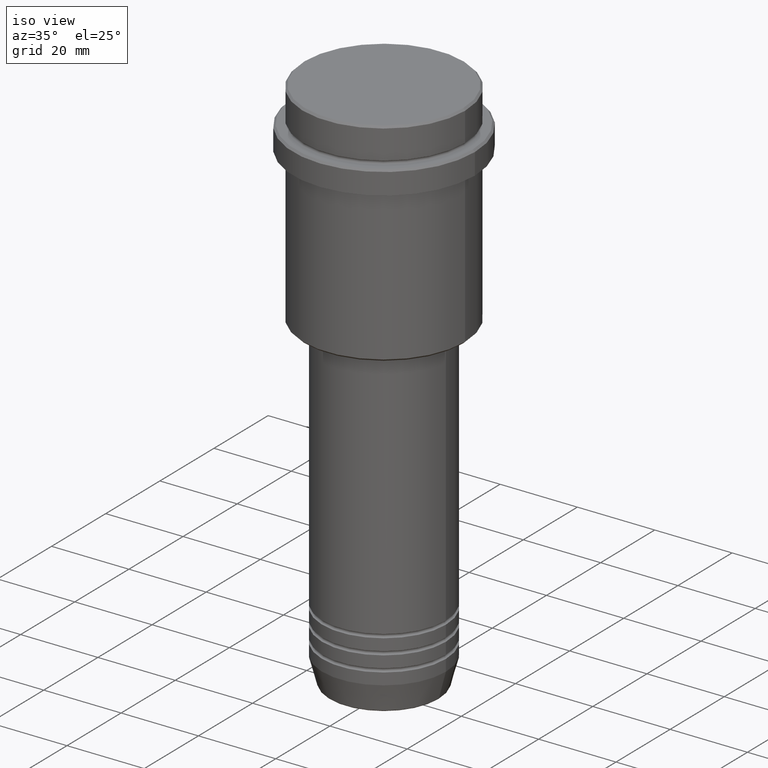
[diagram: clean part render]
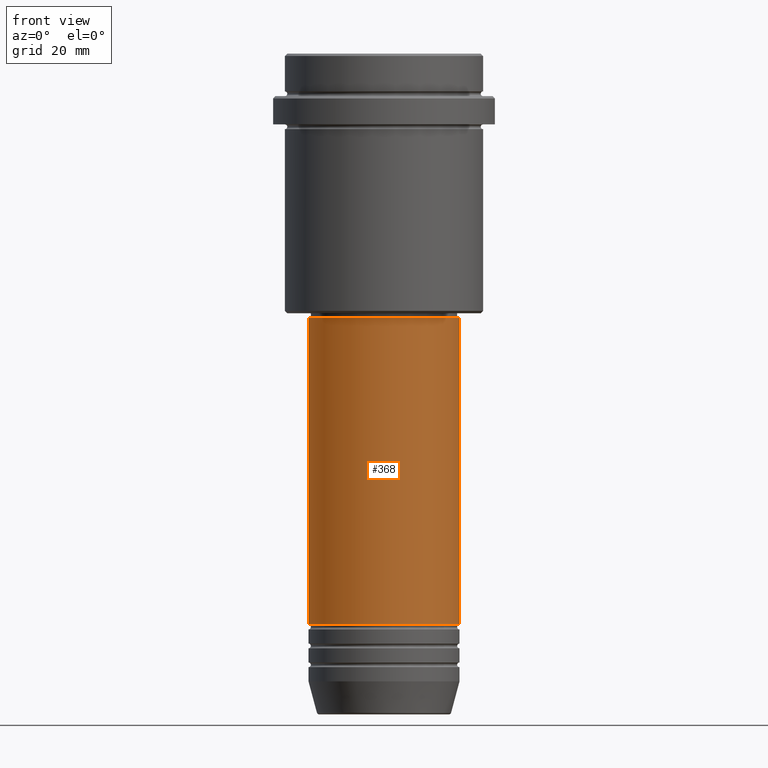
[diagram: tour spotlight — one face highlighted and labeled with its STEP entity id]
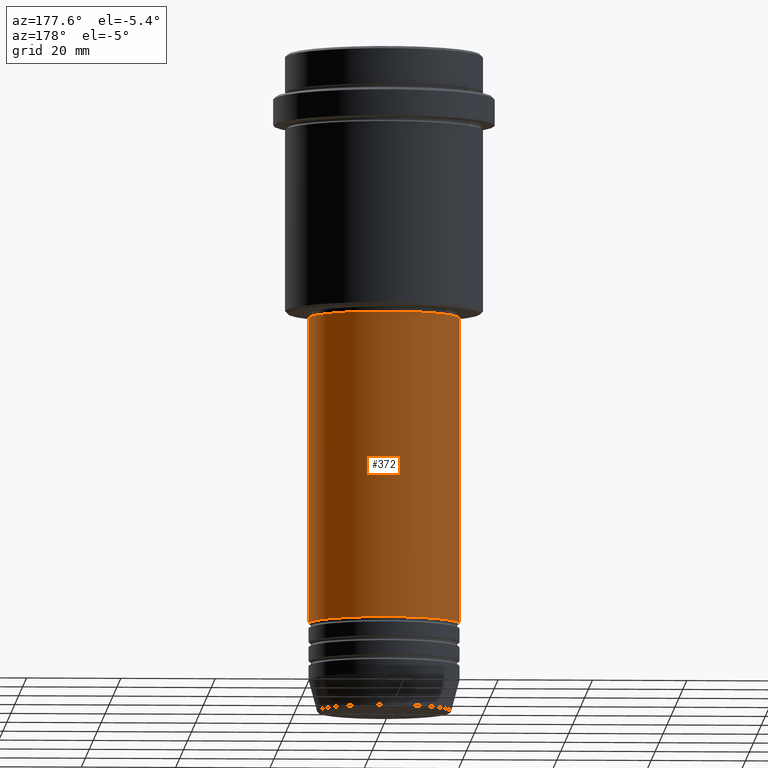
[diagram: tour spotlight — one face highlighted and labeled with its STEP entity id]
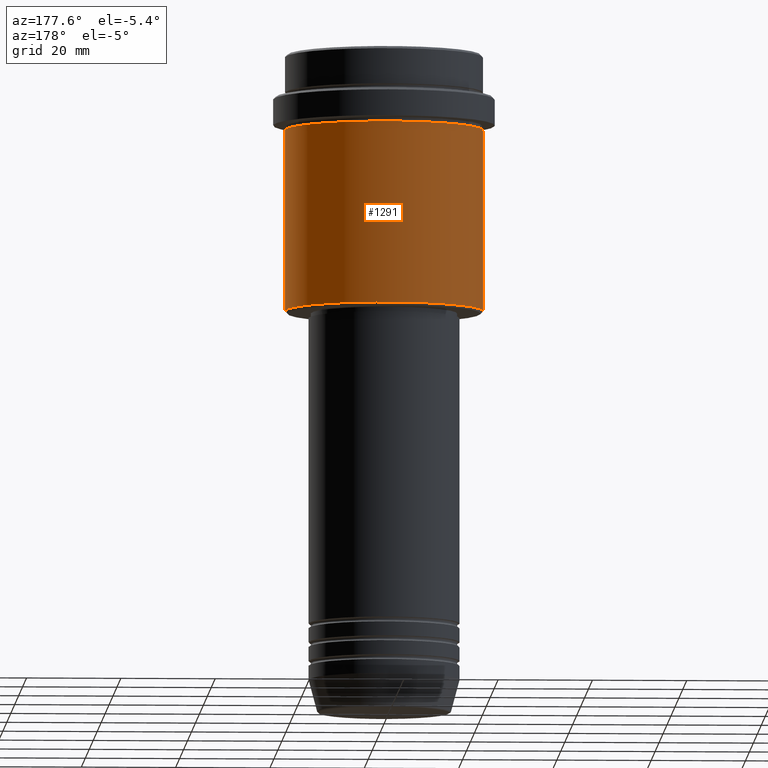
[diagram: tour spotlight — one face highlighted and labeled with its STEP entity id]
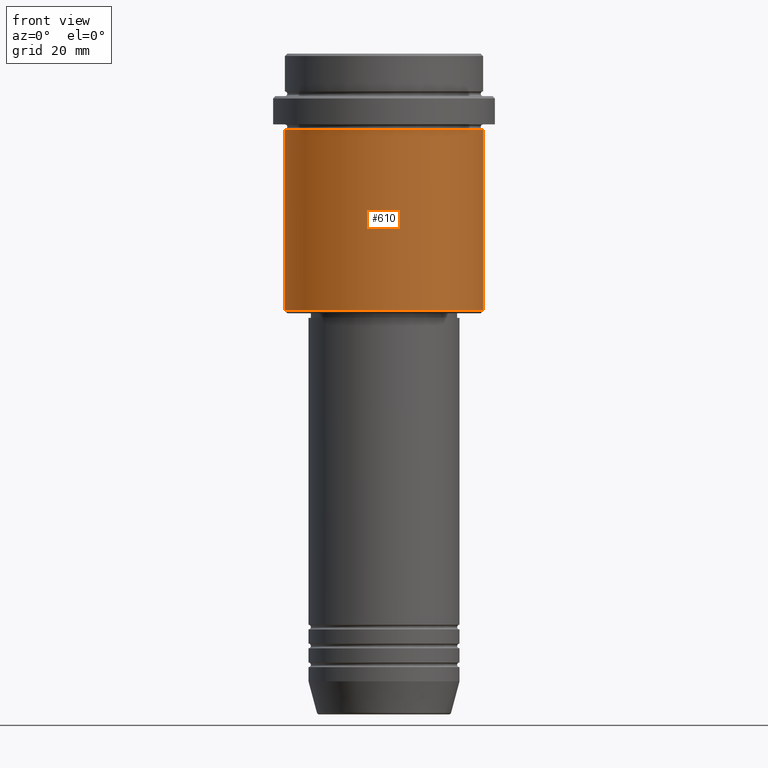
[diagram: tour spotlight — one face highlighted and labeled with its STEP entity id]
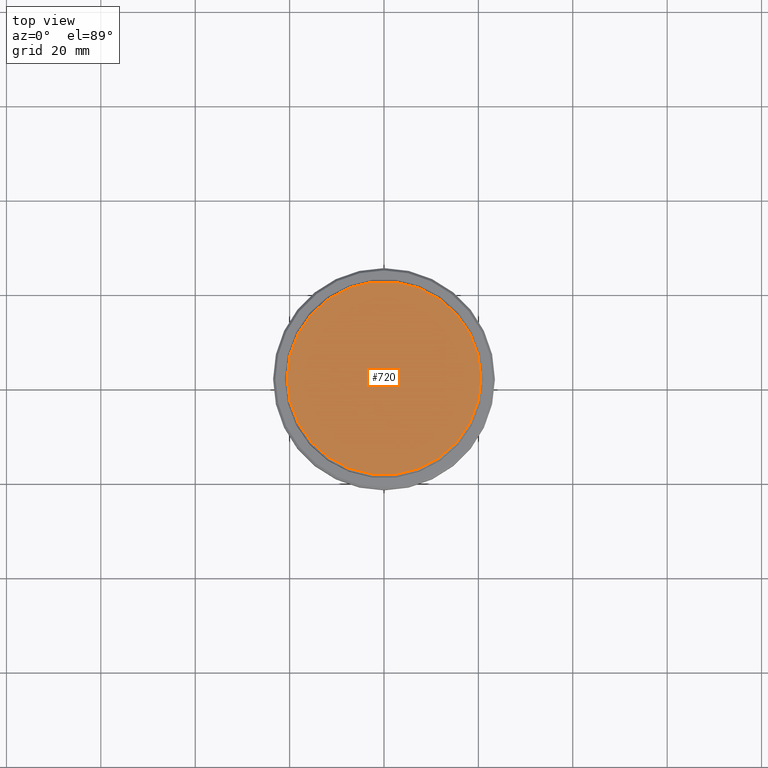
[diagram: tour spotlight — one face highlighted and labeled with its STEP entity id]
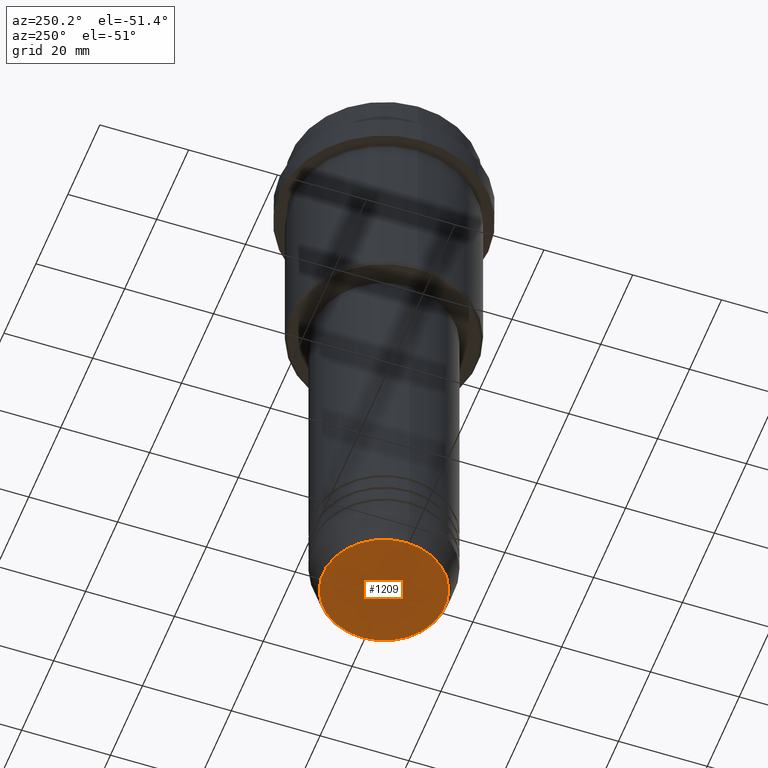
[diagram: tour spotlight — one face highlighted and labeled with its STEP entity id]
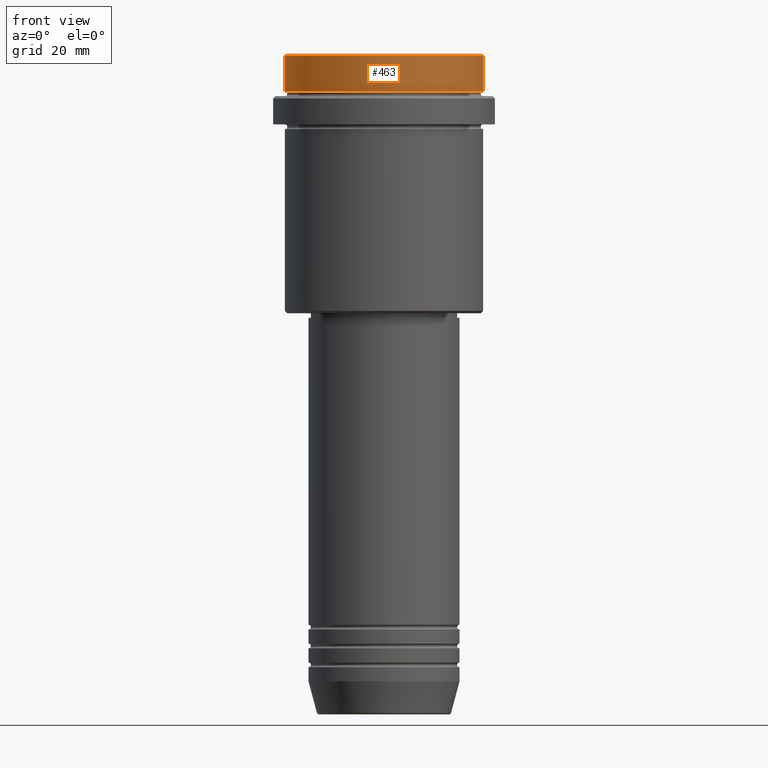
[diagram: tour spotlight — one face highlighted and labeled with its STEP entity id]
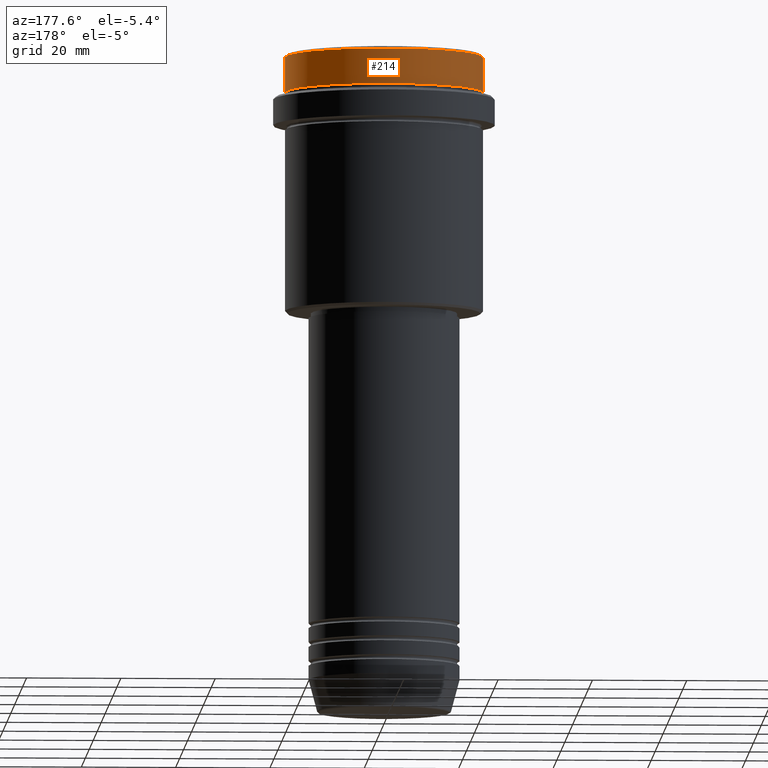
[diagram: tour spotlight — one face highlighted and labeled with its STEP entity id]
A machine part: a face-by-face anatomy tour. The part has 52 B-rep faces; the first image is the clean iso view, then the 8 largest visible faces are spotlighted one at a time (largest first), each with its STEP entity span.

Face 1 — front view, entity #368. In plain terms, the highlighted cylindrical surface (partial cylindrical patch) has radius 16 mm, axis along (-0, -0, 1).
Definition (entity closure, byte-faithful):
#7 = CIRCLE ( 'NONE', #673, 16.00000000000000000 ) ;
#19 = ORIENTED_EDGE ( 'NONE', *, *, #54, .T. ) ;
#47 = FACE_OUTER_BOUND ( 'NONE', #68, .T. ) ;
#54 = EDGE_CURVE ( 'NONE', #112, #759, #1407, .T. ) ;
#68 = EDGE_LOOP ( 'NONE', ( #1361, #914, #19, #954 ) ) ;
#82 = DIRECTION ( 'NONE',  ( 1.000000000000000000, 0.000000000000000000, 0.000000000000000000 ) ) ;
#94 = CIRCLE ( 'NONE', #293, 16.00000000000000355 ) ;
#112 = VERTEX_POINT ( 'NONE', #521 ) ;
#293 = AXIS2_PLACEMENT_3D ( 'NONE', #776, #452, #1183 ) ;
#368 = ADVANCED_FACE ( 'NONE', ( #47 ), #465, .T. ) ;
#409 = CARTESIAN_POINT ( 'NONE',  ( -16.00000000000000000, 1.959434878635765131E-15, -120.9999999999999005 ) ) ;
#452 = DIRECTION ( 'NONE',  ( -0.000000000000000000, -0.000000000000000000, 1.000000000000000000 ) ) ;
#465 = CYLINDRICAL_SURFACE ( 'NONE', #1373, 16.00000000000000000 ) ;
#479 = DIRECTION ( 'NONE',  ( -0.000000000000000000, -0.000000000000000000, 1.000000000000000000 ) ) ;
#497 = VECTOR ( 'NONE', #604, 1000.000000000000000 ) ;
#521 = CARTESIAN_POINT ( 'NONE',  ( 16.00000000000000000, 0.000000000000000000, -120.9999999999999005 ) ) ;
#604 = DIRECTION ( 'NONE',  ( -0.000000000000000000, -0.000000000000000000, 1.000000000000000000 ) ) ;
#673 = AXIS2_PLACEMENT_3D ( 'NONE', #701, #1231, #82 ) ;
#701 = CARTESIAN_POINT ( 'NONE',  ( 0.000000000000000000, 0.000000000000000000, -120.9999999999999005 ) ) ;
#718 = CARTESIAN_POINT ( 'NONE',  ( -16.00000000000000000, 1.959434878635765131E-15, 0.000000000000000000 ) ) ;
#744 = EDGE_CURVE ( 'NONE', #861, #818, #1126, .T. ) ;
#759 = VERTEX_POINT ( 'NONE', #1035 ) ;
#776 = CARTESIAN_POINT ( 'NONE',  ( 0.000000000000000000, 0.000000000000000000, -56.00000000000000711 ) ) ;
#816 = CARTESIAN_POINT ( 'NONE',  ( -16.00000000000000355, 1.959434878635765526E-15, -56.00000000000000711 ) ) ;
#818 = VERTEX_POINT ( 'NONE', #816 ) ;
#821 = EDGE_CURVE ( 'NONE', #861, #112, #7, .T. ) ;
#861 = VERTEX_POINT ( 'NONE', #409 ) ;
#914 = ORIENTED_EDGE ( 'NONE', *, *, #821, .T. ) ;
#916 = CARTESIAN_POINT ( 'NONE',  ( 0.000000000000000000, 0.000000000000000000, 0.000000000000000000 ) ) ;
#954 = ORIENTED_EDGE ( 'NONE', *, *, #1029, .F. ) ;
#1026 = DIRECTION ( 'NONE',  ( 1.000000000000000000, 0.000000000000000000, 0.000000000000000000 ) ) ;
#1029 = EDGE_CURVE ( 'NONE', #818, #759, #94, .T. ) ;
#1035 = CARTESIAN_POINT ( 'NONE',  ( 16.00000000000000355, 0.000000000000000000, -56.00000000000000711 ) ) ;
#1120 = VECTOR ( 'NONE', #1284, 1000.000000000000000 ) ;
#1126 = LINE ( 'NONE', #718, #497 ) ;
#1183 = DIRECTION ( 'NONE',  ( 1.000000000000000000, 0.000000000000000000, 0.000000000000000000 ) ) ;
#1184 = CARTESIAN_POINT ( 'NONE',  ( 16.00000000000000000, 0.000000000000000000, 0.000000000000000000 ) ) ;
#1231 = DIRECTION ( 'NONE',  ( -0.000000000000000000, -0.000000000000000000, 1.000000000000000000 ) ) ;
#1284 = DIRECTION ( 'NONE',  ( -0.000000000000000000, -0.000000000000000000, 1.000000000000000000 ) ) ;
#1361 = ORIENTED_EDGE ( 'NONE', *, *, #744, .F. ) ;
#1373 = AXIS2_PLACEMENT_3D ( 'NONE', #916, #479, #1026 ) ;
#1407 = LINE ( 'NONE', #1184, #1120 ) ;

Face 2 — auxiliary view, entity #372. In plain terms, the highlighted cylindrical surface (partial cylindrical patch) has radius 16 mm, axis along (-0, -0, 1).
Definition (entity closure, byte-faithful):
#24 = CARTESIAN_POINT ( 'NONE',  ( 0.000000000000000000, 0.000000000000000000, 0.000000000000000000 ) ) ;
#54 = EDGE_CURVE ( 'NONE', #112, #759, #1407, .T. ) ;
#60 = DIRECTION ( 'NONE',  ( -0.000000000000000000, -0.000000000000000000, 1.000000000000000000 ) ) ;
#112 = VERTEX_POINT ( 'NONE', #521 ) ;
#204 = DIRECTION ( 'NONE',  ( -0.000000000000000000, -0.000000000000000000, 1.000000000000000000 ) ) ;
#235 = AXIS2_PLACEMENT_3D ( 'NONE', #24, #204, #948 ) ;
#243 = FACE_OUTER_BOUND ( 'NONE', #826, .T. ) ;
#353 = AXIS2_PLACEMENT_3D ( 'NONE', #1228, #60, #1353 ) ;
#372 = ADVANCED_FACE ( 'NONE', ( #243 ), #580, .T. ) ;
#409 = CARTESIAN_POINT ( 'NONE',  ( -16.00000000000000000, 1.959434878635765131E-15, -120.9999999999999005 ) ) ;
#497 = VECTOR ( 'NONE', #604, 1000.000000000000000 ) ;
#501 = ORIENTED_EDGE ( 'NONE', *, *, #629, .F. ) ;
#521 = CARTESIAN_POINT ( 'NONE',  ( 16.00000000000000000, 0.000000000000000000, -120.9999999999999005 ) ) ;
#580 = CYLINDRICAL_SURFACE ( 'NONE', #235, 16.00000000000000000 ) ;
#604 = DIRECTION ( 'NONE',  ( -0.000000000000000000, -0.000000000000000000, 1.000000000000000000 ) ) ;
#629 = EDGE_CURVE ( 'NONE', #759, #818, #851, .T. ) ;
#718 = CARTESIAN_POINT ( 'NONE',  ( -16.00000000000000000, 1.959434878635765131E-15, 0.000000000000000000 ) ) ;
#738 = ORIENTED_EDGE ( 'NONE', *, *, #54, .F. ) ;
#744 = EDGE_CURVE ( 'NONE', #861, #818, #1126, .T. ) ;
#759 = VERTEX_POINT ( 'NONE', #1035 ) ;
#790 = DIRECTION ( 'NONE',  ( -0.000000000000000000, -0.000000000000000000, 1.000000000000000000 ) ) ;
#816 = CARTESIAN_POINT ( 'NONE',  ( -16.00000000000000355, 1.959434878635765526E-15, -56.00000000000000711 ) ) ;
#818 = VERTEX_POINT ( 'NONE', #816 ) ;
#826 = EDGE_LOOP ( 'NONE', ( #1187, #937, #501, #738 ) ) ;
#851 = CIRCLE ( 'NONE', #1400, 16.00000000000000355 ) ;
#861 = VERTEX_POINT ( 'NONE', #409 ) ;
#937 = ORIENTED_EDGE ( 'NONE', *, *, #744, .T. ) ;
#948 = DIRECTION ( 'NONE',  ( 1.000000000000000000, 0.000000000000000000, 0.000000000000000000 ) ) ;
#1035 = CARTESIAN_POINT ( 'NONE',  ( 16.00000000000000355, 0.000000000000000000, -56.00000000000000711 ) ) ;
#1119 = EDGE_CURVE ( 'NONE', #112, #861, #1197, .T. ) ;
#1120 = VECTOR ( 'NONE', #1284, 1000.000000000000000 ) ;
#1126 = LINE ( 'NONE', #718, #497 ) ;
#1184 = CARTESIAN_POINT ( 'NONE',  ( 16.00000000000000000, 0.000000000000000000, 0.000000000000000000 ) ) ;
#1187 = ORIENTED_EDGE ( 'NONE', *, *, #1119, .T. ) ;
#1197 = CIRCLE ( 'NONE', #353, 16.00000000000000000 ) ;
#1228 = CARTESIAN_POINT ( 'NONE',  ( 0.000000000000000000, 0.000000000000000000, -120.9999999999999005 ) ) ;
#1284 = DIRECTION ( 'NONE',  ( -0.000000000000000000, -0.000000000000000000, 1.000000000000000000 ) ) ;
#1327 = DIRECTION ( 'NONE',  ( 1.000000000000000000, 0.000000000000000000, 0.000000000000000000 ) ) ;
#1353 = DIRECTION ( 'NONE',  ( 1.000000000000000000, 0.000000000000000000, 0.000000000000000000 ) ) ;
#1400 = AXIS2_PLACEMENT_3D ( 'NONE', #1413, #790, #1327 ) ;
#1407 = LINE ( 'NONE', #1184, #1120 ) ;
#1413 = CARTESIAN_POINT ( 'NONE',  ( 0.000000000000000000, 0.000000000000000000, -56.00000000000000711 ) ) ;

Face 3 — auxiliary view, entity #1291. In plain terms, the highlighted cylindrical surface (partial cylindrical patch) has radius 21 mm, axis along (-0, -0, 1).
Definition (entity closure, byte-faithful):
#36 = DIRECTION ( 'NONE',  ( -0.000000000000000000, -0.000000000000000000, 1.000000000000000000 ) ) ;
#65 = CARTESIAN_POINT ( 'NONE',  ( 0.000000000000000000, 0.000000000000000000, -54.49999999999999289 ) ) ;
#73 = AXIS2_PLACEMENT_3D ( 'NONE', #65, #950, #1208 ) ;
#75 = EDGE_CURVE ( 'NONE', #143, #228, #591, .T. ) ;
#100 = LINE ( 'NONE', #301, #287 ) ;
#143 = VERTEX_POINT ( 'NONE', #512 ) ;
#186 = DIRECTION ( 'NONE',  ( 1.000000000000000000, 0.000000000000000000, 0.000000000000000000 ) ) ;
#228 = VERTEX_POINT ( 'NONE', #808 ) ;
#287 = VECTOR ( 'NONE', #306, 1000.000000000000000 ) ;
#298 = ORIENTED_EDGE ( 'NONE', *, *, #75, .F. ) ;
#301 = CARTESIAN_POINT ( 'NONE',  ( -21.00000000000000000, 2.571758278209441661E-15, 0.000000000000000000 ) ) ;
#306 = DIRECTION ( 'NONE',  ( -0.000000000000000000, -0.000000000000000000, 1.000000000000000000 ) ) ;
#365 = EDGE_LOOP ( 'NONE', ( #1343, #449, #298, #802 ) ) ;
#406 = VERTEX_POINT ( 'NONE', #1129 ) ;
#418 = DIRECTION ( 'NONE',  ( -0.000000000000000000, -0.000000000000000000, 1.000000000000000000 ) ) ;
#425 = CARTESIAN_POINT ( 'NONE',  ( 0.000000000000000000, 0.000000000000000000, 0.000000000000000000 ) ) ;
#449 = ORIENTED_EDGE ( 'NONE', *, *, #488, .T. ) ;
#488 = EDGE_CURVE ( 'NONE', #1287, #228, #100, .T. ) ;
#512 = CARTESIAN_POINT ( 'NONE',  ( 21.00000000000000000, 0.000000000000000000, -16.00000000000000355 ) ) ;
#591 = CIRCLE ( 'NONE', #1330, 21.00000000000000000 ) ;
#612 = LINE ( 'NONE', #1041, #1053 ) ;
#734 = FACE_OUTER_BOUND ( 'NONE', #365, .T. ) ;
#777 = EDGE_CURVE ( 'NONE', #406, #143, #612, .T. ) ;
#802 = ORIENTED_EDGE ( 'NONE', *, *, #777, .F. ) ;
#808 = CARTESIAN_POINT ( 'NONE',  ( -21.00000000000000000, 2.571758278209441661E-15, -16.00000000000000355 ) ) ;
#950 = DIRECTION ( 'NONE',  ( -0.000000000000000000, -0.000000000000000000, 1.000000000000000000 ) ) ;
#963 = EDGE_CURVE ( 'NONE', #406, #1287, #1229, .T. ) ;
#1009 = AXIS2_PLACEMENT_3D ( 'NONE', #425, #418, #186 ) ;
#1041 = CARTESIAN_POINT ( 'NONE',  ( 21.00000000000000000, 0.000000000000000000, 0.000000000000000000 ) ) ;
#1053 = VECTOR ( 'NONE', #36, 1000.000000000000000 ) ;
#1129 = CARTESIAN_POINT ( 'NONE',  ( 21.00000000000000000, 0.000000000000000000, -54.49999999999999289 ) ) ;
#1161 = CARTESIAN_POINT ( 'NONE',  ( -21.00000000000000000, 2.571758278209441661E-15, -54.49999999999999289 ) ) ;
#1169 = CARTESIAN_POINT ( 'NONE',  ( 0.000000000000000000, 0.000000000000000000, -16.00000000000000355 ) ) ;
#1208 = DIRECTION ( 'NONE',  ( -1.000000000000000000, 0.000000000000000000, 0.000000000000000000 ) ) ;
#1229 = CIRCLE ( 'NONE', #73, 21.00000000000000000 ) ;
#1287 = VERTEX_POINT ( 'NONE', #1161 ) ;
#1290 = DIRECTION ( 'NONE',  ( 1.000000000000000000, 0.000000000000000000, 0.000000000000000000 ) ) ;
#1291 = ADVANCED_FACE ( 'NONE', ( #734 ), #1392, .T. ) ;
#1330 = AXIS2_PLACEMENT_3D ( 'NONE', #1169, #1412, #1290 ) ;
#1343 = ORIENTED_EDGE ( 'NONE', *, *, #963, .T. ) ;
#1392 = CYLINDRICAL_SURFACE ( 'NONE', #1009, 21.00000000000000000 ) ;
#1412 = DIRECTION ( 'NONE',  ( -0.000000000000000000, -0.000000000000000000, 1.000000000000000000 ) ) ;

Face 4 — front view, entity #610. In plain terms, the highlighted cylindrical surface (partial cylindrical patch) has radius 21 mm, axis along (-0, -0, 1).
Definition (entity closure, byte-faithful):
#36 = DIRECTION ( 'NONE',  ( -0.000000000000000000, -0.000000000000000000, 1.000000000000000000 ) ) ;
#37 = ORIENTED_EDGE ( 'NONE', *, *, #777, .T. ) ;
#100 = LINE ( 'NONE', #301, #287 ) ;
#122 = DIRECTION ( 'NONE',  ( -1.000000000000000000, 0.000000000000000000, 0.000000000000000000 ) ) ;
#143 = VERTEX_POINT ( 'NONE', #512 ) ;
#228 = VERTEX_POINT ( 'NONE', #808 ) ;
#236 = CARTESIAN_POINT ( 'NONE',  ( 0.000000000000000000, 0.000000000000000000, 0.000000000000000000 ) ) ;
#287 = VECTOR ( 'NONE', #306, 1000.000000000000000 ) ;
#301 = CARTESIAN_POINT ( 'NONE',  ( -21.00000000000000000, 2.571758278209441661E-15, 0.000000000000000000 ) ) ;
#306 = DIRECTION ( 'NONE',  ( -0.000000000000000000, -0.000000000000000000, 1.000000000000000000 ) ) ;
#360 = FACE_OUTER_BOUND ( 'NONE', #888, .T. ) ;
#366 = DIRECTION ( 'NONE',  ( -0.000000000000000000, -0.000000000000000000, 1.000000000000000000 ) ) ;
#406 = VERTEX_POINT ( 'NONE', #1129 ) ;
#433 = ORIENTED_EDGE ( 'NONE', *, *, #983, .F. ) ;
#459 = CARTESIAN_POINT ( 'NONE',  ( 0.000000000000000000, 0.000000000000000000, -54.49999999999999289 ) ) ;
#474 = DIRECTION ( 'NONE',  ( -0.000000000000000000, -0.000000000000000000, 1.000000000000000000 ) ) ;
#488 = EDGE_CURVE ( 'NONE', #1287, #228, #100, .T. ) ;
#499 = CIRCLE ( 'NONE', #674, 21.00000000000000000 ) ;
#512 = CARTESIAN_POINT ( 'NONE',  ( 21.00000000000000000, 0.000000000000000000, -16.00000000000000355 ) ) ;
#610 = ADVANCED_FACE ( 'NONE', ( #360 ), #1337, .T. ) ;
#612 = LINE ( 'NONE', #1041, #1053 ) ;
#674 = AXIS2_PLACEMENT_3D ( 'NONE', #788, #1106, #1297 ) ;
#777 = EDGE_CURVE ( 'NONE', #406, #143, #612, .T. ) ;
#788 = CARTESIAN_POINT ( 'NONE',  ( 0.000000000000000000, 0.000000000000000000, -16.00000000000000355 ) ) ;
#808 = CARTESIAN_POINT ( 'NONE',  ( -21.00000000000000000, 2.571758278209441661E-15, -16.00000000000000355 ) ) ;
#813 = AXIS2_PLACEMENT_3D ( 'NONE', #236, #474, #892 ) ;
#888 = EDGE_LOOP ( 'NONE', ( #1128, #1047, #37, #433 ) ) ;
#892 = DIRECTION ( 'NONE',  ( 1.000000000000000000, 0.000000000000000000, 0.000000000000000000 ) ) ;
#983 = EDGE_CURVE ( 'NONE', #228, #143, #499, .T. ) ;
#1041 = CARTESIAN_POINT ( 'NONE',  ( 21.00000000000000000, 0.000000000000000000, 0.000000000000000000 ) ) ;
#1047 = ORIENTED_EDGE ( 'NONE', *, *, #1074, .T. ) ;
#1053 = VECTOR ( 'NONE', #36, 1000.000000000000000 ) ;
#1074 = EDGE_CURVE ( 'NONE', #1287, #406, #1324, .T. ) ;
#1106 = DIRECTION ( 'NONE',  ( -0.000000000000000000, -0.000000000000000000, 1.000000000000000000 ) ) ;
#1128 = ORIENTED_EDGE ( 'NONE', *, *, #488, .F. ) ;
#1129 = CARTESIAN_POINT ( 'NONE',  ( 21.00000000000000000, 0.000000000000000000, -54.49999999999999289 ) ) ;
#1161 = CARTESIAN_POINT ( 'NONE',  ( -21.00000000000000000, 2.571758278209441661E-15, -54.49999999999999289 ) ) ;
#1246 = AXIS2_PLACEMENT_3D ( 'NONE', #459, #366, #122 ) ;
#1287 = VERTEX_POINT ( 'NONE', #1161 ) ;
#1297 = DIRECTION ( 'NONE',  ( 1.000000000000000000, 0.000000000000000000, 0.000000000000000000 ) ) ;
#1324 = CIRCLE ( 'NONE', #1246, 21.00000000000000000 ) ;
#1337 = CYLINDRICAL_SURFACE ( 'NONE', #813, 21.00000000000000000 ) ;

Face 5 — top view, entity #720. In plain terms, the highlighted planar face has unit normal (0, -0, 1).
Definition (entity closure, byte-faithful):
#10 = CARTESIAN_POINT ( 'NONE',  ( 20.49999999999996447, 2.541142108230755902E-15, 0.000000000000000000 ) ) ;
#63 = ORIENTED_EDGE ( 'NONE', *, *, #226, .T. ) ;
#149 = DIRECTION ( 'NONE',  ( 1.000000000000000000, 0.000000000000000000, 0.000000000000000000 ) ) ;
#153 = DIRECTION ( 'NONE',  ( 0.000000000000000000, -0.000000000000000000, 1.000000000000000000 ) ) ;
#185 = AXIS2_PLACEMENT_3D ( 'NONE', #986, #1321, #559 ) ;
#226 = EDGE_CURVE ( 'NONE', #1005, #1072, #969, .T. ) ;
#246 = CARTESIAN_POINT ( 'NONE',  ( 0.000000000000000000, 0.000000000000000000, 0.000000000000000000 ) ) ;
#310 = CIRCLE ( 'NONE', #185, 20.49999999999996447 ) ;
#376 = EDGE_CURVE ( 'NONE', #1072, #1005, #310, .T. ) ;
#509 = PLANE ( 'NONE',  #1095 ) ;
#559 = DIRECTION ( 'NONE',  ( 1.000000000000000000, 0.000000000000000000, 0.000000000000000000 ) ) ;
#607 = DIRECTION ( 'NONE',  ( -0.000000000000000000, -0.000000000000000000, 1.000000000000000000 ) ) ;
#697 = CARTESIAN_POINT ( 'NONE',  ( 0.000000000000000000, 0.000000000000000000, 0.000000000000000000 ) ) ;
#720 = ADVANCED_FACE ( 'NONE', ( #1368 ), #509, .T. ) ;
#969 = CIRCLE ( 'NONE', #1221, 20.49999999999996447 ) ;
#986 = CARTESIAN_POINT ( 'NONE',  ( 0.000000000000000000, 0.000000000000000000, 0.000000000000000000 ) ) ;
#988 = CARTESIAN_POINT ( 'NONE',  ( -20.49999999999996447, 0.000000000000000000, 0.000000000000000000 ) ) ;
#1005 = VERTEX_POINT ( 'NONE', #988 ) ;
#1072 = VERTEX_POINT ( 'NONE', #10 ) ;
#1095 = AXIS2_PLACEMENT_3D ( 'NONE', #697, #153, #149 ) ;
#1124 = DIRECTION ( 'NONE',  ( 1.000000000000000000, 0.000000000000000000, 0.000000000000000000 ) ) ;
#1179 = EDGE_LOOP ( 'NONE', ( #63, #1224 ) ) ;
#1221 = AXIS2_PLACEMENT_3D ( 'NONE', #246, #607, #1124 ) ;
#1224 = ORIENTED_EDGE ( 'NONE', *, *, #376, .T. ) ;
#1321 = DIRECTION ( 'NONE',  ( -0.000000000000000000, -0.000000000000000000, 1.000000000000000000 ) ) ;
#1368 = FACE_OUTER_BOUND ( 'NONE', #1179, .T. ) ;

Face 6 — auxiliary view, entity #1209. In plain terms, the highlighted planar face has unit normal (0, -0, 1).
Definition (entity closure, byte-faithful):
#71 = VERTEX_POINT ( 'NONE', #460 ) ;
#89 = CARTESIAN_POINT ( 'NONE',  ( 0.000000000000000000, 0.000000000000000000, -140.0000000000000000 ) ) ;
#126 = ORIENTED_EDGE ( 'NONE', *, *, #879, .T. ) ;
#193 = VERTEX_POINT ( 'NONE', #1282 ) ;
#284 = DIRECTION ( 'NONE',  ( 1.000000000000000000, 0.000000000000000000, 0.000000000000000000 ) ) ;
#377 = DIRECTION ( 'NONE',  ( 0.000000000000000000, -0.000000000000000000, 1.000000000000000000 ) ) ;
#460 = CARTESIAN_POINT ( 'NONE',  ( -13.74069215899265828, 1.712322416342415986E-15, -140.0000000000000000 ) ) ;
#494 = AXIS2_PLACEMENT_3D ( 'NONE', #812, #377, #804 ) ;
#536 = AXIS2_PLACEMENT_3D ( 'NONE', #1359, #1356, #284 ) ;
#606 = AXIS2_PLACEMENT_3D ( 'NONE', #89, #843, #1262 ) ;
#696 = CIRCLE ( 'NONE', #536, 13.74069215899265828 ) ;
#766 = EDGE_CURVE ( 'NONE', #193, #71, #696, .T. ) ;
#789 = CIRCLE ( 'NONE', #606, 13.74069215899265828 ) ;
#804 = DIRECTION ( 'NONE',  ( 1.000000000000000000, 0.000000000000000000, 0.000000000000000000 ) ) ;
#812 = CARTESIAN_POINT ( 'NONE',  ( 0.000000000000000000, 0.000000000000000000, -140.0000000000000000 ) ) ;
#835 = EDGE_LOOP ( 'NONE', ( #1288, #126 ) ) ;
#843 = DIRECTION ( 'NONE',  ( 0.000000000000000000, 0.000000000000000000, -1.000000000000000000 ) ) ;
#879 = EDGE_CURVE ( 'NONE', #71, #193, #789, .T. ) ;
#1032 = PLANE ( 'NONE',  #494 ) ;
#1132 = FACE_OUTER_BOUND ( 'NONE', #835, .T. ) ;
#1209 = ADVANCED_FACE ( 'NONE', ( #1132 ), #1032, .F. ) ;
#1262 = DIRECTION ( 'NONE',  ( 1.000000000000000000, 0.000000000000000000, 0.000000000000000000 ) ) ;
#1282 = CARTESIAN_POINT ( 'NONE',  ( 13.74069215899265828, 0.000000000000000000, -140.0000000000000000 ) ) ;
#1288 = ORIENTED_EDGE ( 'NONE', *, *, #766, .T. ) ;
#1356 = DIRECTION ( 'NONE',  ( 0.000000000000000000, 0.000000000000000000, -1.000000000000000000 ) ) ;
#1359 = CARTESIAN_POINT ( 'NONE',  ( 0.000000000000000000, 0.000000000000000000, -140.0000000000000000 ) ) ;

Face 7 — front view, entity #463. In plain terms, the highlighted cylindrical surface (partial cylindrical patch) has radius 21 mm, axis along (-0, -0, 1).
Definition (entity closure, byte-faithful):
#42 = VERTEX_POINT ( 'NONE', #137 ) ;
#66 = EDGE_CURVE ( 'NONE', #42, #1114, #768, .T. ) ;
#137 = CARTESIAN_POINT ( 'NONE',  ( 21.00000000000000000, 0.000000000000000000, -7.999999999999998224 ) ) ;
#144 = AXIS2_PLACEMENT_3D ( 'NONE', #631, #865, #1280 ) ;
#171 = ORIENTED_EDGE ( 'NONE', *, *, #1158, .T. ) ;
#212 = CYLINDRICAL_SURFACE ( 'NONE', #144, 21.00000000000000000 ) ;
#218 = DIRECTION ( 'NONE',  ( 1.000000000000000000, 0.000000000000000000, 0.000000000000000000 ) ) ;
#307 = ORIENTED_EDGE ( 'NONE', *, *, #66, .T. ) ;
#343 = VERTEX_POINT ( 'NONE', #1317 ) ;
#346 = CARTESIAN_POINT ( 'NONE',  ( -21.00000000000000000, 2.571758278209441661E-15, -7.999999999999998224 ) ) ;
#354 = ORIENTED_EDGE ( 'NONE', *, *, #666, .F. ) ;
#422 = AXIS2_PLACEMENT_3D ( 'NONE', #1307, #898, #218 ) ;
#463 = ADVANCED_FACE ( 'NONE', ( #742 ), #212, .T. ) ;
#595 = CARTESIAN_POINT ( 'NONE',  ( 0.000000000000000000, 0.000000000000000000, -7.999999999999998224 ) ) ;
#631 = CARTESIAN_POINT ( 'NONE',  ( 0.000000000000000000, 0.000000000000000000, 0.000000000000000000 ) ) ;
#665 = DIRECTION ( 'NONE',  ( -0.000000000000000000, -0.000000000000000000, 1.000000000000000000 ) ) ;
#666 = EDGE_CURVE ( 'NONE', #1104, #343, #1315, .T. ) ;
#683 = CARTESIAN_POINT ( 'NONE',  ( 21.00000000000000000, 0.000000000000000000, -0.5000000000000247580 ) ) ;
#684 = CARTESIAN_POINT ( 'NONE',  ( -21.00000000000000000, 2.571758278209441661E-15, 0.000000000000000000 ) ) ;
#742 = FACE_OUTER_BOUND ( 'NONE', #1379, .T. ) ;
#768 = LINE ( 'NONE', #1100, #996 ) ;
#865 = DIRECTION ( 'NONE',  ( -0.000000000000000000, -0.000000000000000000, 1.000000000000000000 ) ) ;
#887 = ORIENTED_EDGE ( 'NONE', *, *, #1103, .T. ) ;
#898 = DIRECTION ( 'NONE',  ( 0.000000000000000000, 0.000000000000000000, -1.000000000000000000 ) ) ;
#944 = AXIS2_PLACEMENT_3D ( 'NONE', #595, #1118, #1019 ) ;
#981 = DIRECTION ( 'NONE',  ( -0.000000000000000000, -0.000000000000000000, 1.000000000000000000 ) ) ;
#996 = VECTOR ( 'NONE', #981, 1000.000000000000000 ) ;
#1008 = CIRCLE ( 'NONE', #944, 21.00000000000000000 ) ;
#1019 = DIRECTION ( 'NONE',  ( 1.000000000000000000, 0.000000000000000000, 0.000000000000000000 ) ) ;
#1100 = CARTESIAN_POINT ( 'NONE',  ( 21.00000000000000000, 0.000000000000000000, 0.000000000000000000 ) ) ;
#1103 = EDGE_CURVE ( 'NONE', #1114, #343, #1416, .T. ) ;
#1104 = VERTEX_POINT ( 'NONE', #346 ) ;
#1114 = VERTEX_POINT ( 'NONE', #683 ) ;
#1118 = DIRECTION ( 'NONE',  ( -0.000000000000000000, -0.000000000000000000, 1.000000000000000000 ) ) ;
#1158 = EDGE_CURVE ( 'NONE', #1104, #42, #1008, .T. ) ;
#1280 = DIRECTION ( 'NONE',  ( 1.000000000000000000, 0.000000000000000000, 0.000000000000000000 ) ) ;
#1307 = CARTESIAN_POINT ( 'NONE',  ( 0.000000000000000000, 0.000000000000000000, -0.5000000000000247580 ) ) ;
#1315 = LINE ( 'NONE', #684, #1332 ) ;
#1317 = CARTESIAN_POINT ( 'NONE',  ( -21.00000000000000000, 2.571758278209441661E-15, -0.5000000000000247580 ) ) ;
#1332 = VECTOR ( 'NONE', #665, 1000.000000000000000 ) ;
#1379 = EDGE_LOOP ( 'NONE', ( #354, #171, #307, #887 ) ) ;
#1416 = CIRCLE ( 'NONE', #422, 21.00000000000000000 ) ;

Face 8 — auxiliary view, entity #214. In plain terms, the highlighted cylindrical surface (partial cylindrical patch) has radius 21 mm, axis along (-0, -0, 1).
Definition (entity closure, byte-faithful):
#28 = ORIENTED_EDGE ( 'NONE', *, *, #1241, .T. ) ;
#42 = VERTEX_POINT ( 'NONE', #137 ) ;
#66 = EDGE_CURVE ( 'NONE', #42, #1114, #768, .T. ) ;
#98 = DIRECTION ( 'NONE',  ( -0.000000000000000000, -0.000000000000000000, 1.000000000000000000 ) ) ;
#137 = CARTESIAN_POINT ( 'NONE',  ( 21.00000000000000000, 0.000000000000000000, -7.999999999999998224 ) ) ;
#183 = AXIS2_PLACEMENT_3D ( 'NONE', #1213, #600, #1039 ) ;
#214 = ADVANCED_FACE ( 'NONE', ( #434 ), #756, .T. ) ;
#325 = CARTESIAN_POINT ( 'NONE',  ( 0.000000000000000000, 0.000000000000000000, 0.000000000000000000 ) ) ;
#343 = VERTEX_POINT ( 'NONE', #1317 ) ;
#346 = CARTESIAN_POINT ( 'NONE',  ( -21.00000000000000000, 2.571758278209441661E-15, -7.999999999999998224 ) ) ;
#395 = ORIENTED_EDGE ( 'NONE', *, *, #666, .T. ) ;
#434 = FACE_OUTER_BOUND ( 'NONE', #769, .T. ) ;
#441 = DIRECTION ( 'NONE',  ( 1.000000000000000000, 0.000000000000000000, 0.000000000000000000 ) ) ;
#600 = DIRECTION ( 'NONE',  ( 0.000000000000000000, 0.000000000000000000, -1.000000000000000000 ) ) ;
#665 = DIRECTION ( 'NONE',  ( -0.000000000000000000, -0.000000000000000000, 1.000000000000000000 ) ) ;
#666 = EDGE_CURVE ( 'NONE', #1104, #343, #1315, .T. ) ;
#683 = CARTESIAN_POINT ( 'NONE',  ( 21.00000000000000000, 0.000000000000000000, -0.5000000000000247580 ) ) ;
#684 = CARTESIAN_POINT ( 'NONE',  ( -21.00000000000000000, 2.571758278209441661E-15, 0.000000000000000000 ) ) ;
#704 = ORIENTED_EDGE ( 'NONE', *, *, #66, .F. ) ;
#712 = AXIS2_PLACEMENT_3D ( 'NONE', #325, #98, #441 ) ;
#732 = AXIS2_PLACEMENT_3D ( 'NONE', #735, #1051, #967 ) ;
#735 = CARTESIAN_POINT ( 'NONE',  ( 0.000000000000000000, 0.000000000000000000, -7.999999999999998224 ) ) ;
#756 = CYLINDRICAL_SURFACE ( 'NONE', #712, 21.00000000000000000 ) ;
#768 = LINE ( 'NONE', #1100, #996 ) ;
#769 = EDGE_LOOP ( 'NONE', ( #894, #395, #28, #704 ) ) ;
#815 = CIRCLE ( 'NONE', #732, 21.00000000000000000 ) ;
#852 = EDGE_CURVE ( 'NONE', #42, #1104, #815, .T. ) ;
#894 = ORIENTED_EDGE ( 'NONE', *, *, #852, .T. ) ;
#967 = DIRECTION ( 'NONE',  ( 1.000000000000000000, 0.000000000000000000, 0.000000000000000000 ) ) ;
#981 = DIRECTION ( 'NONE',  ( -0.000000000000000000, -0.000000000000000000, 1.000000000000000000 ) ) ;
#996 = VECTOR ( 'NONE', #981, 1000.000000000000000 ) ;
#1039 = DIRECTION ( 'NONE',  ( 1.000000000000000000, 0.000000000000000000, 0.000000000000000000 ) ) ;
#1051 = DIRECTION ( 'NONE',  ( -0.000000000000000000, -0.000000000000000000, 1.000000000000000000 ) ) ;
#1100 = CARTESIAN_POINT ( 'NONE',  ( 21.00000000000000000, 0.000000000000000000, 0.000000000000000000 ) ) ;
#1104 = VERTEX_POINT ( 'NONE', #346 ) ;
#1114 = VERTEX_POINT ( 'NONE', #683 ) ;
#1213 = CARTESIAN_POINT ( 'NONE',  ( 0.000000000000000000, 0.000000000000000000, -0.5000000000000247580 ) ) ;
#1241 = EDGE_CURVE ( 'NONE', #343, #1114, #1274, .T. ) ;
#1274 = CIRCLE ( 'NONE', #183, 21.00000000000000000 ) ;
#1315 = LINE ( 'NONE', #684, #1332 ) ;
#1317 = CARTESIAN_POINT ( 'NONE',  ( -21.00000000000000000, 2.571758278209441661E-15, -0.5000000000000247580 ) ) ;
#1332 = VECTOR ( 'NONE', #665, 1000.000000000000000 ) ;